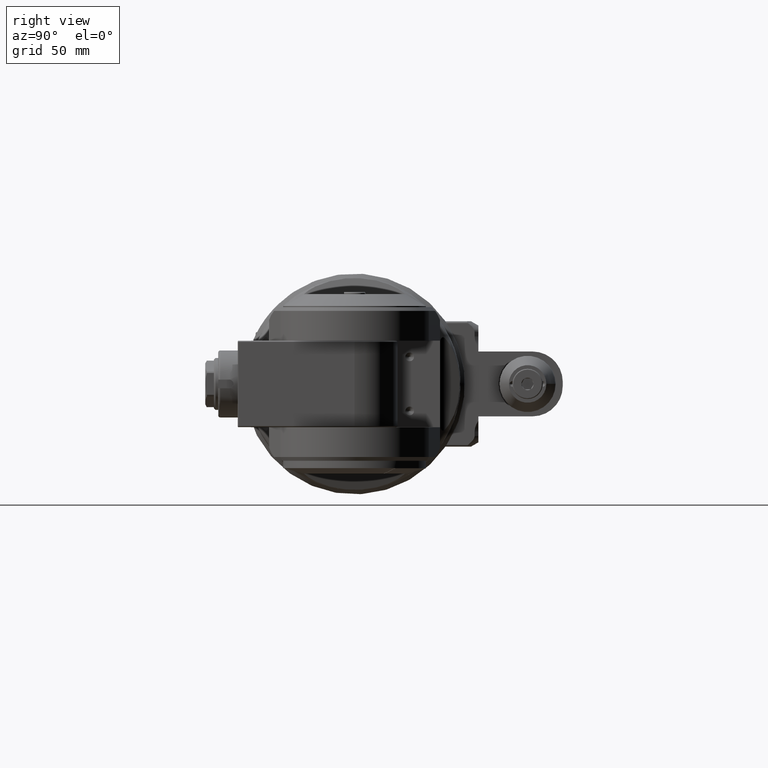
[diagram: clean part render]
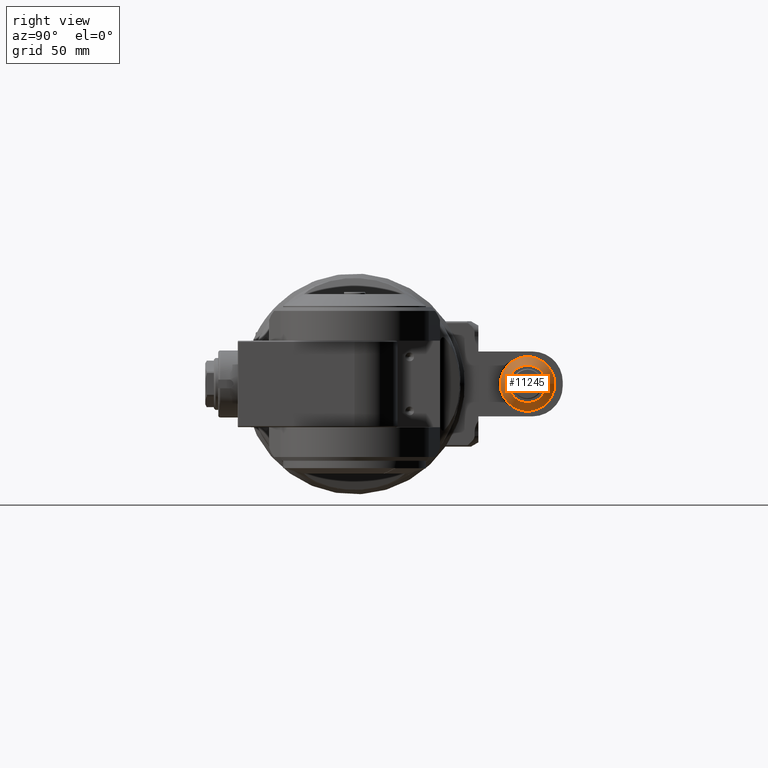
[diagram: same view with one face highlighted and labeled with its STEP entity id]
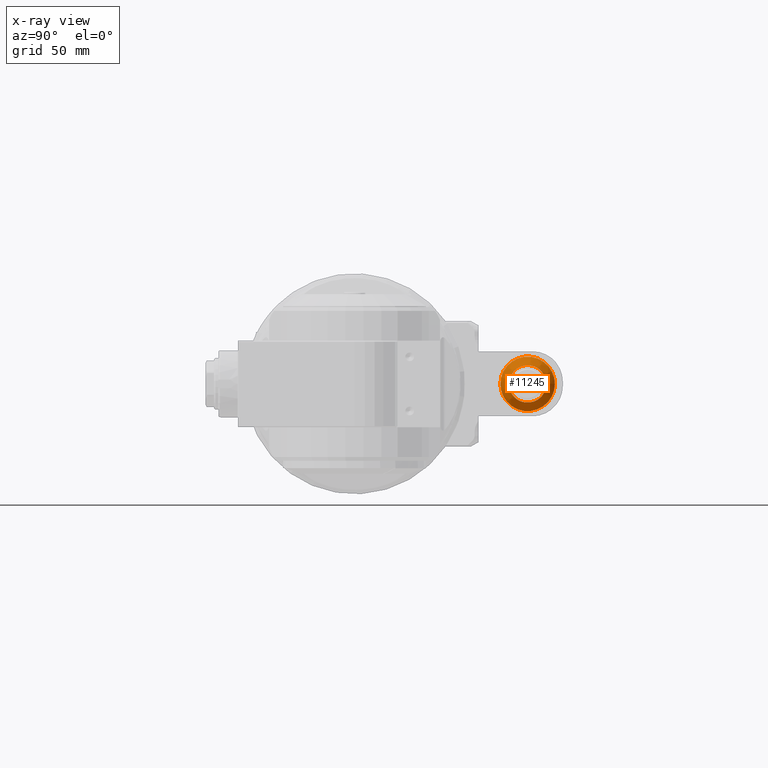
[diagram: x-ray of the same camera — body ghosted, the highlighted face saturated]
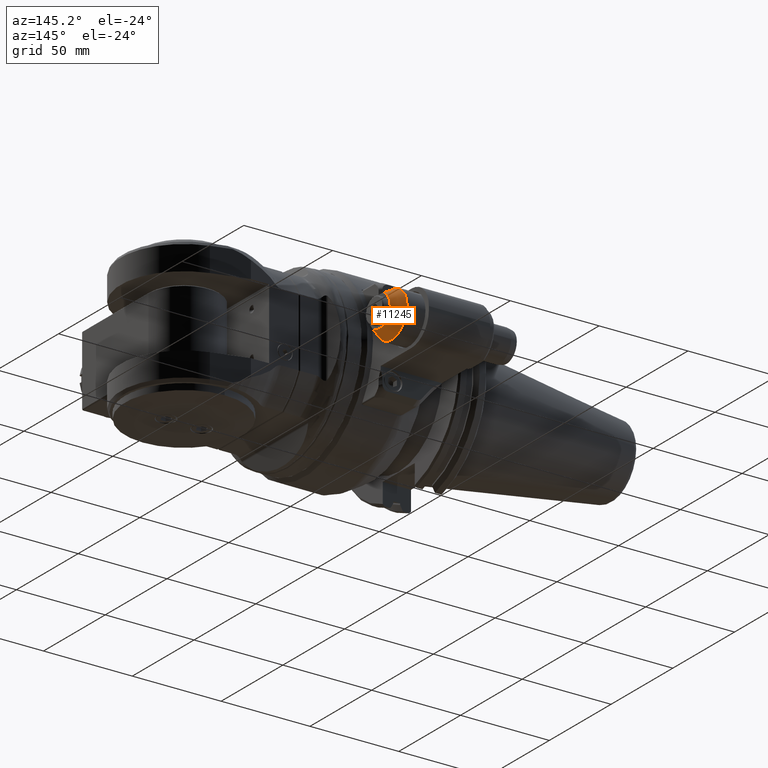
[diagram: same view with one face highlighted and labeled with its STEP entity id]
A machine part, right view. The second image highlights one B-rep face of the part: STEP entity #11245.
The next image is the same camera in x-ray: the body ghosted, the highlighted face saturated — about 0% of this face is hidden behind the body in this view.
A second angle (auxiliary view) of the same face is appended — the face is thin or edge-on in the first view.
In plain terms, the highlighted conical surface has half-angle 30 deg.
Its self-contained STEP definition (entity closure, byte-faithful):
#355=CONICAL_SURFACE('',#12362,10.63397459622,0.523598775598299);
#861=CIRCLE('',#12361,12.59807621135);
#862=CIRCLE('',#12363,8.669872981078);
#1491=FACE_OUTER_BOUND('',#2238,.T.);
#2238=EDGE_LOOP('',(#9637,#9638,#9639,#9640));
#3041=LINE('',#19636,#3838);
#3838=VECTOR('',#15074,10.63397459622);
#5194=VERTEX_POINT('',#19631);
#5195=VERTEX_POINT('',#19635);
#6714=EDGE_CURVE('',#5194,#5194,#861,.T.);
#6715=EDGE_CURVE('',#5194,#5195,#3041,.T.);
#6716=EDGE_CURVE('',#5195,#5195,#862,.T.);
#9637=ORIENTED_EDGE('',*,*,#6714,.F.);
#9638=ORIENTED_EDGE('',*,*,#6715,.T.);
#9639=ORIENTED_EDGE('',*,*,#6716,.F.);
#9640=ORIENTED_EDGE('',*,*,#6715,.F.);
#11245=ADVANCED_FACE('',(#1491),#355,.T.);
#12361=AXIS2_PLACEMENT_3D('',#19633,#15070,#15071);
#12362=AXIS2_PLACEMENT_3D('',#19634,#15072,#15073);
#12363=AXIS2_PLACEMENT_3D('',#19637,#15075,#15076);
#15070=DIRECTION('center_axis',(-1.,0.,0.));
#15071=DIRECTION('ref_axis',(0.,1.,0.));
#15072=DIRECTION('center_axis',(-1.,0.,0.));
#15073=DIRECTION('ref_axis',(0.,-1.,0.));
#15074=DIRECTION('',(0.866025403784439,-0.5,6.12323399573676E-17));
#15075=DIRECTION('center_axis',(1.,0.,0.));
#15076=DIRECTION('ref_axis',(0.,-1.,0.));
#19631=CARTESIAN_POINT('',(-7.303847577293,92.59807621135,0.));
#19633=CARTESIAN_POINT('Origin',(-7.303847577293,80.,0.));
#19634=CARTESIAN_POINT('Origin',(-3.901923788647,80.,0.));
#19635=CARTESIAN_POINT('',(-0.5,88.66987298108,0.));
#19636=CARTESIAN_POINT('',(-3.901923788647,90.63397459622,-1.30228629514751E-15));
#19637=CARTESIAN_POINT('Origin',(-0.5,80.,0.));